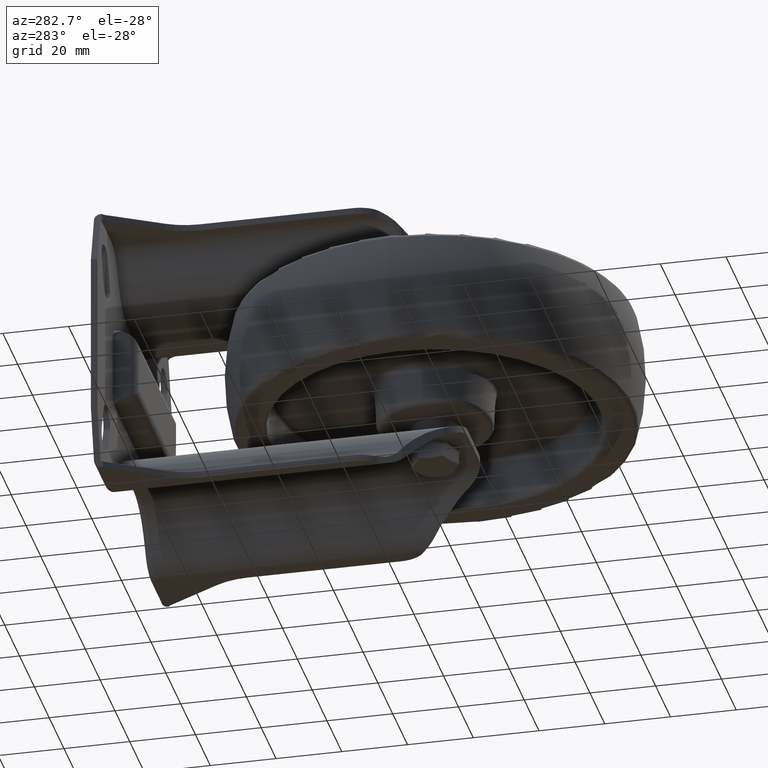
[diagram: clean part render]
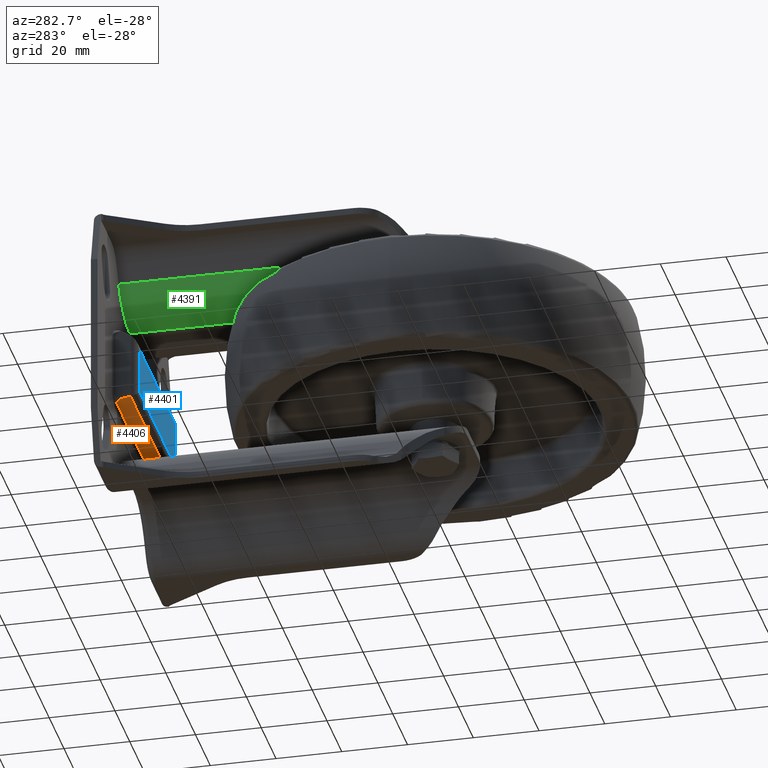
[diagram: same view with three faces highlighted in distinct colors, each labeled with its STEP entity id]
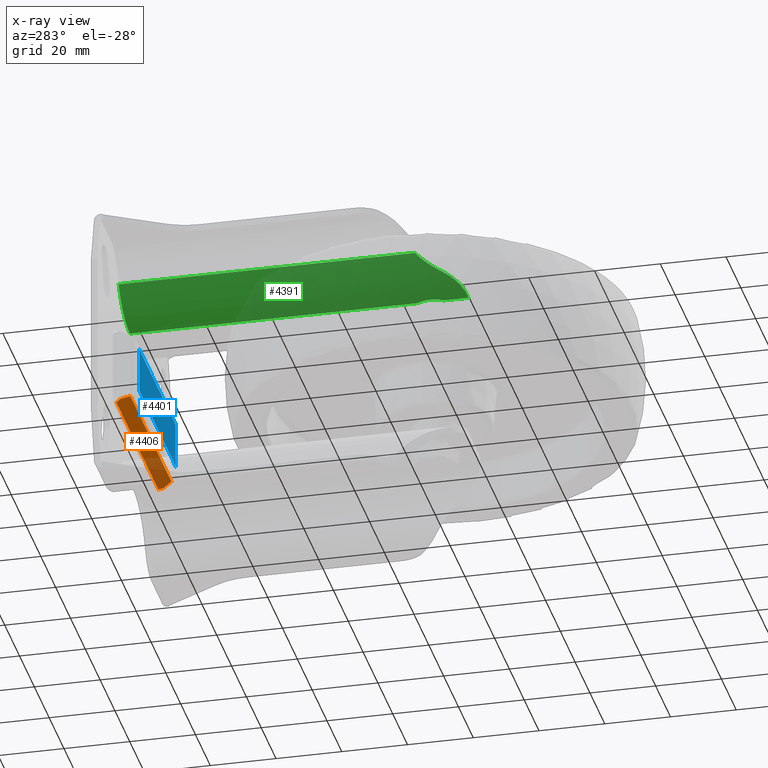
[diagram: x-ray of the same camera — body ghosted, the three highlighted faces saturated]
A machine part, auxiliary view with three faces highlighted in distinct colors.
The next image is the same camera in x-ray (body ghosted, the three faces saturated) — at least one of them is partly hidden behind the body in this view.
Their STEP definitions:

[orange] entity #4406 — the highlighted planar face has unit normal (0, 0.4226, 0.9063).
#90=ELLIPSE('',#4852,16.5634110820675,7.);
#94=ELLIPSE('',#4861,16.5634110820675,7.00000000000001);
#226=PLANE('',#4871);
#501=FACE_OUTER_BOUND('',#759,.T.);
#759=EDGE_LOOP('',(#3518,#3519,#3520,#3521,#3522,#3523));
#1033=LINE('',#7532,#1307);
#1042=LINE('',#7583,#1316);
#1043=LINE('',#7599,#1317);
#1044=LINE('',#7601,#1318);
#1307=VECTOR('',#5921,3.26645201362053);
#1316=VECTOR('',#5952,3.26645201362053);
#1317=VECTOR('',#5961,55.3563554694342);
#1318=VECTOR('',#5964,56.410273614974);
#1921=VERTEX_POINT('',#7486);
#1923=VERTEX_POINT('',#7508);
#1926=VERTEX_POINT('',#7529);
#1927=VERTEX_POINT('',#7531);
#1931=VERTEX_POINT('',#7556);
#1935=VERTEX_POINT('',#7577);
#2478=EDGE_CURVE('',#1923,#1921,#90,.T.);
#2483=EDGE_CURVE('',#1926,#1927,#1033,.T.);
#2491=EDGE_CURVE('',#1931,#1926,#94,.T.);
#2499=EDGE_CURVE('',#1935,#1923,#1042,.T.);
#2503=EDGE_CURVE('',#1935,#1927,#1043,.T.);
#2504=EDGE_CURVE('',#1921,#1931,#1044,.T.);
#3518=ORIENTED_EDGE('',*,*,#2478,.F.);
#3519=ORIENTED_EDGE('',*,*,#2499,.F.);
#3520=ORIENTED_EDGE('',*,*,#2503,.T.);
#3521=ORIENTED_EDGE('',*,*,#2483,.F.);
#3522=ORIENTED_EDGE('',*,*,#2491,.F.);
#3523=ORIENTED_EDGE('',*,*,#2504,.F.);
#4406=ADVANCED_FACE('',(#501),#226,.F.);
#4852=AXIS2_PLACEMENT_3D('',#7510,#5911,#5912);
#4861=AXIS2_PLACEMENT_3D('',#7567,#5935,#5936);
#4871=AXIS2_PLACEMENT_3D('',#7600,#5962,#5963);
#5911=DIRECTION('center_axis',(-6.80381682693264E-33,0.4226182617407,0.90630778703665));
#5912=DIRECTION('ref_axis',(-1.07245834242648E-16,-0.90630778703665,0.4226182617407));
#5921=DIRECTION('',(0.389281620635023,-0.834817129478988,0.389281620635025));
#5935=DIRECTION('center_axis',(1.36076336538653E-32,0.4226182617407,0.90630778703665));
#5936=DIRECTION('ref_axis',(2.14491668485296E-16,0.906307787036649,-0.4226182617407));
#5952=DIRECTION('',(0.389281620635023,0.834817129478988,-0.389281620635025));
#5961=DIRECTION('',(-1.,0.,0.));
#5962=DIRECTION('center_axis',(0.,0.4226182617407,0.90630778703665));
#5963=DIRECTION('ref_axis',(1.,0.,0.));
#5964=DIRECTION('',(-1.,0.,0.));
#7486=CARTESIAN_POINT('',(28.205136807487,90.633927392611,-12.0961437106563));
#7508=CARTESIAN_POINT('',(28.9497474683058,89.2477261774992,-11.4497474683058));
#7510=CARTESIAN_POINT('Origin',(24.,78.6329584769427,-6.5));
#7529=CARTESIAN_POINT('',(-28.9497474683058,89.2477261774992,-11.4497474683058));
#7531=CARTESIAN_POINT('',(-27.6781777347171,86.5208360839076,-10.1781777347171));
#7532=CARTESIAN_POINT('',(-28.9497474683058,89.2477261774992,-11.4497474683058));
#7556=CARTESIAN_POINT('',(-28.205136807487,90.633927392611,-12.0961437106563));
#7567=CARTESIAN_POINT('Origin',(-24.,78.6329584769427,-6.49999999999999));
#7577=CARTESIAN_POINT('',(27.6781777347171,86.5208360839076,-10.1781777347171));
#7583=CARTESIAN_POINT('',(27.6781777347171,86.5208360839076,-10.1781777347171));
#7599=CARTESIAN_POINT('',(27.6781777347171,86.5208360839076,-10.1781777347171));
#7600=CARTESIAN_POINT('Origin',(62.,90.633927392611,-12.0961437106563));
#7601=CARTESIAN_POINT('',(28.205136807487,90.633927392611,-12.0961437106563));

[blue] entity #4401 — the highlighted planar face has unit normal (0, 1, 0).
#224=PLANE('',#4862);
#496=FACE_OUTER_BOUND('',#754,.T.);
#754=EDGE_LOOP('',(#3495,#3496,#3497,#3498));
#1035=LINE('',#7539,#1309);
#1037=LINE('',#7570,#1311);
#1038=LINE('',#7572,#1312);
#1039=LINE('',#7573,#1313);
#1309=VECTOR('',#5929,14.0122009601776);
#1311=VECTOR('',#5939,49.0122009601776);
#1312=VECTOR('',#5940,49.0122009601776);
#1313=VECTOR('',#5941,14.0122009601776);
#1928=VERTEX_POINT('',#7535);
#1929=VERTEX_POINT('',#7537);
#1932=VERTEX_POINT('',#7569);
#1933=VERTEX_POINT('',#7571);
#2487=EDGE_CURVE('',#1929,#1928,#1035,.T.);
#2492=EDGE_CURVE('',#1928,#1932,#1037,.T.);
#2493=EDGE_CURVE('',#1929,#1933,#1038,.T.);
#2494=EDGE_CURVE('',#1933,#1932,#1039,.T.);
#3495=ORIENTED_EDGE('',*,*,#2492,.F.);
#3496=ORIENTED_EDGE('',*,*,#2487,.F.);
#3497=ORIENTED_EDGE('',*,*,#2493,.T.);
#3498=ORIENTED_EDGE('',*,*,#2494,.T.);
#4401=ADVANCED_FACE('',(#496),#224,.F.);
#4862=AXIS2_PLACEMENT_3D('',#7568,#5937,#5938);
#5929=DIRECTION('',(0.,0.,1.));
#5937=DIRECTION('center_axis',(0.,1.,0.));
#5938=DIRECTION('ref_axis',(0.,0.,1.));
#5939=DIRECTION('',(1.,0.,0.));
#5940=DIRECTION('',(1.,0.,0.));
#5941=DIRECTION('',(0.,0.,1.));
#7535=CARTESIAN_POINT('',(-24.5061004800888,84.5,7.00610048008878));
#7537=CARTESIAN_POINT('',(-24.5061004800888,84.5,-7.00610048008879));
#7539=CARTESIAN_POINT('',(-24.5061004800888,84.5,-7.00610048008879));
#7568=CARTESIAN_POINT('Origin',(0.,84.5,0.));
#7569=CARTESIAN_POINT('',(24.5061004800888,84.5,7.00610048008878));
#7570=CARTESIAN_POINT('',(-24.5061004800888,84.5,7.00610048008879));
#7571=CARTESIAN_POINT('',(24.5061004800888,84.5,-7.00610048008879));
#7572=CARTESIAN_POINT('',(-24.5061004800888,84.5,-7.00610048008879));
#7573=CARTESIAN_POINT('',(24.5061004800888,84.5,-7.00610048008879));

[green] entity #4391 — the highlighted cylindrical surface (partial cylindrical patch) has radius 17.5 mm, axis along (0, 1, 0).
#36=B_SPLINE_CURVE_WITH_KNOTS('',3,(#7325,#7326,#7327,#7328,#7329,#7330,
#7331,#7332),.UNSPECIFIED.,.F.,.F.,(4,2,2,4),(1.52846887471478,1.92900743891991,
2.32954600312503,2.59431483622054),.UNSPECIFIED.);
#41=B_SPLINE_CURVE_WITH_KNOTS('',3,(#7427,#7428,#7429,#7430,#7431,#7432),
 .UNSPECIFIED.,.F.,.F.,(4,2,4),(2.00322804562178,2.1303254845732,2.41393282962825),
 .UNSPECIFIED.);
#42=B_SPLINE_CURVE_WITH_KNOTS('',3,(#7433,#7434,#7435,#7436,#7437,#7438),
 .UNSPECIFIED.,.F.,.F.,(4,2,4),(2.41393282962825,2.6975401746833,2.82463761363531),
 .UNSPECIFIED.);
#82=ELLIPSE('',#4813,35.,17.5);
#486=FACE_OUTER_BOUND('',#744,.T.);
#744=EDGE_LOOP('',(#3439,#3440,#3441,#3442,#3443,#3444,#3445,#3446,#3447));
#948=LINE('',#7015,#1222);
#949=LINE('',#7020,#1223);
#1029=LINE('',#7424,#1303);
#1222=VECTOR('',#5602,90.0849364905389);
#1223=VECTOR('',#5607,87.4322602804429);
#1303=VECTOR('',#5889,7.43226028044293);
#1497=CIRCLE('',#4720,17.5);
#1531=CIRCLE('',#4819,17.5);
#1784=VERTEX_POINT('',#6931);
#1785=VERTEX_POINT('',#6933);
#1816=VERTEX_POINT('',#7009);
#1820=VERTEX_POINT('',#7018);
#1888=VERTEX_POINT('',#7316);
#1891=VERTEX_POINT('',#7324);
#1896=VERTEX_POINT('',#7351);
#1912=VERTEX_POINT('',#7420);
#1914=VERTEX_POINT('',#7426);
#2273=EDGE_CURVE('',#1784,#1785,#1497,.T.);
#2312=EDGE_CURVE('',#1785,#1816,#948,.T.);
#2314=EDGE_CURVE('',#1784,#1820,#949,.T.);
#2422=EDGE_CURVE('',#1888,#1816,#82,.T.);
#2426=EDGE_CURVE('',#1891,#1888,#36,.T.);
#2433=EDGE_CURVE('',#1896,#1891,#1531,.T.);
#2463=EDGE_CURVE('',#1912,#1896,#1029,.T.);
#2464=EDGE_CURVE('',#1820,#1914,#41,.T.);
#2465=EDGE_CURVE('',#1914,#1912,#42,.T.);
#3439=ORIENTED_EDGE('',*,*,#2464,.T.);
#3440=ORIENTED_EDGE('',*,*,#2465,.T.);
#3441=ORIENTED_EDGE('',*,*,#2463,.T.);
#3442=ORIENTED_EDGE('',*,*,#2433,.T.);
#3443=ORIENTED_EDGE('',*,*,#2426,.T.);
#3444=ORIENTED_EDGE('',*,*,#2422,.T.);
#3445=ORIENTED_EDGE('',*,*,#2312,.F.);
#3446=ORIENTED_EDGE('',*,*,#2273,.F.);
#3447=ORIENTED_EDGE('',*,*,#2314,.T.);
#3947=CYLINDRICAL_SURFACE('',#4842,17.5);
#4391=ADVANCED_FACE('',(#486),#3947,.T.);
#4720=AXIS2_PLACEMENT_3D('',#6934,#5541,#5542);
#4813=AXIS2_PLACEMENT_3D('',#7317,#5810,#5811);
#4819=AXIS2_PLACEMENT_3D('',#7352,#5827,#5828);
#4842=AXIS2_PLACEMENT_3D('',#7425,#5890,#5891);
#5541=DIRECTION('center_axis',(0.,1.,0.));
#5542=DIRECTION('ref_axis',(0.,0.,-1.));
#5602=DIRECTION('',(0.,-1.,0.));
#5607=DIRECTION('',(0.,-1.,0.));
#5810=DIRECTION('center_axis',(0.866025403784439,0.5,0.));
#5811=DIRECTION('ref_axis',(0.5,-0.866025403784439,0.));
#5827=DIRECTION('center_axis',(0.,1.,0.));
#5828=DIRECTION('ref_axis',(0.,0.,-1.));
#5889=DIRECTION('',(0.,-1.,0.));
#5890=DIRECTION('center_axis',(0.,1.,0.));
#5891=DIRECTION('ref_axis',(0.,0.,-1.));
#6931=CARTESIAN_POINT('',(-6.3010708275608,91.5,22.5));
#6933=CARTESIAN_POINT('',(-21.4565153937885,91.5,31.25));
#6934=CARTESIAN_POINT('Origin',(-6.3010708275608,91.5,40.));
#7009=CARTESIAN_POINT('',(-21.4565153937885,1.41506350946109,31.25));
#7015=CARTESIAN_POINT('',(-21.4565153937885,91.5,31.25));
#7018=CARTESIAN_POINT('',(-6.3010708275608,4.06773971955707,22.5));
#7020=CARTESIAN_POINT('',(-6.3010708275608,91.5,22.5));
#7316=CARTESIAN_POINT('',(-16.8867513459481,-6.5,26.0646719463575));
#7317=CARTESIAN_POINT('Origin',(-6.3010708275608,-24.8349364905389,40.));
#7324=CARTESIAN_POINT('',(-8.22649730810373,-11.5,22.6062444288755));
#7325=CARTESIAN_POINT('Ctrl Pts',(-8.22649730810372,-11.5,22.6062444288755));
#7326=CARTESIAN_POINT('Ctrl Pts',(-9.55352014288337,-11.5,22.7531411065896));
#7327=CARTESIAN_POINT('Ctrl Pts',(-10.926941766473,-11.2216642553053,23.0716874317324));
#7328=CARTESIAN_POINT('Ctrl Pts',(-13.3959159043286,-10.1648866855846,23.9491552703652));
#7329=CARTESIAN_POINT('Ctrl Pts',(-14.4939899417438,-9.38856631159817,24.5035278291256));
#7330=CARTESIAN_POINT('Ctrl Pts',(-15.925706583125,-7.93291559351749,25.3692201854369));
#7331=CARTESIAN_POINT('Ctrl Pts',(-16.4518496573188,-7.25327182100339,25.7343079739404));
#7332=CARTESIAN_POINT('Ctrl Pts',(-16.886751345948,-6.50000000000021,26.0646719463574));
#7351=CARTESIAN_POINT('',(-6.3010708275608,-11.5,22.5));
#7352=CARTESIAN_POINT('Origin',(-6.3010708275608,-11.5,40.));
#7420=CARTESIAN_POINT('',(-6.3010708275608,-4.06773971955707,22.5));
#7424=CARTESIAN_POINT('',(-6.3010708275608,-4.06773971955707,22.5));
#7425=CARTESIAN_POINT('Origin',(-6.3010708275608,93.5,40.));
#7426=CARTESIAN_POINT('',(-7.5,-4.59227382683391E-16,22.5411177666073));
#7427=CARTESIAN_POINT('Ctrl Pts',(-6.30107082756762,4.06773971954651,22.5));
#7428=CARTESIAN_POINT('Ctrl Pts',(-6.5423511039693,3.69398814847215,22.5000000000001));
#7429=CARTESIAN_POINT('Ctrl Pts',(-6.7527271219681,3.29434948754119,22.5049771462781));
#7430=CARTESIAN_POINT('Ctrl Pts',(-7.31037227811612,1.95309165479758,22.5248810304711));
#7431=CARTESIAN_POINT('Ctrl Pts',(-7.5,0.945357816850178,22.5411177666073));
#7432=CARTESIAN_POINT('Ctrl Pts',(-7.5,-2.77555756156289E-16,22.5411177666073));
#7433=CARTESIAN_POINT('Ctrl Pts',(-7.5,-2.77555756156289E-16,22.5411177666073));
#7434=CARTESIAN_POINT('Ctrl Pts',(-7.5,-0.945357816850176,22.5411177666073));
#7435=CARTESIAN_POINT('Ctrl Pts',(-7.31037227811612,-1.95309165479757,22.5248810304711));
#7436=CARTESIAN_POINT('Ctrl Pts',(-6.75272712196731,-3.29434948754311,22.5049771462781));
#7437=CARTESIAN_POINT('Ctrl Pts',(-6.54235110396735,-3.69398814847585,22.5));
#7438=CARTESIAN_POINT('Ctrl Pts',(-6.30107082756427,-4.0677397195517,22.5));